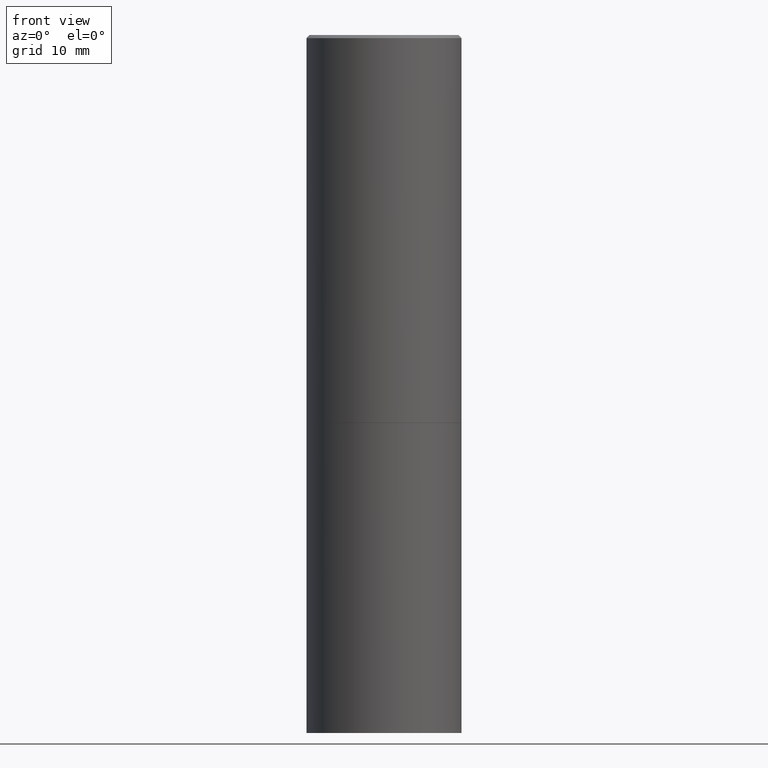
[diagram: clean part render]
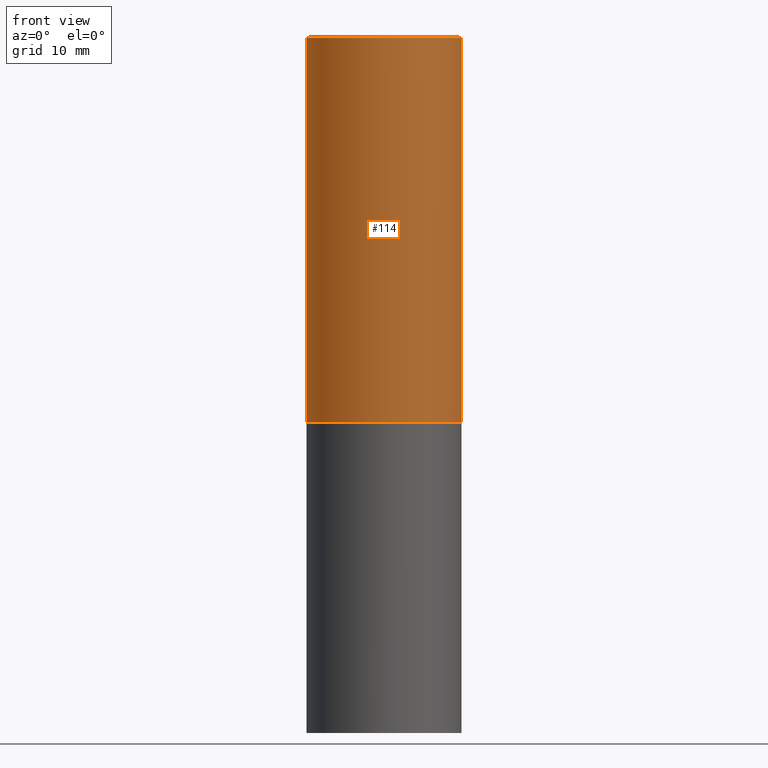
[diagram: same view with one face highlighted and labeled with its STEP entity id]
A machine part, front view. The second image highlights one B-rep face of the part: STEP entity #114.
In plain terms, the highlighted cylindrical surface (partial cylindrical patch) has radius 12.7 mm, axis along (-0, 0, 1).
Its self-contained STEP definition (entity closure, byte-faithful):
#19 = CARTESIAN_POINT ( 'NONE',  ( -0.5000000000000000000, -8.448070674724393209E-16, -2.499000000000000110 ) ) ;
#21 = DIRECTION ( 'NONE',  ( -2.445468806185136877E-29, 3.491481338843145188E-15, 1.000000000000000000 ) ) ;
#57 = CARTESIAN_POINT ( 'NONE',  ( 0.4999999999999997780, -3.491481338843131778E-15, 2.438088387897966775E-29 ) ) ;
#58 = DIRECTION ( 'NONE',  ( -2.445468806185136877E-29, 3.491481338843145188E-15, 1.000000000000000000 ) ) ;
#66 = CIRCLE ( 'NONE', #239, 0.4999999999999996114 ) ;
#77 = CARTESIAN_POINT ( 'NONE',  ( 0.5000000000000000000, -1.221669320461215371E-14, -2.499000000000000110 ) ) ;
#88 = EDGE_CURVE ( 'NONE', #126, #344, #66, .T. ) ;
#89 = VERTEX_POINT ( 'NONE', #77 ) ;
#114 = ADVANCED_FACE ( 'NONE', ( #138 ), #297, .T. ) ;
#126 = VERTEX_POINT ( 'NONE', #134 ) ;
#134 = CARTESIAN_POINT ( 'NONE',  ( -0.4999999999999996114, 3.421651712066267296E-15, -0.02000000000000009409 ) ) ;
#138 = FACE_OUTER_BOUND ( 'NONE', #173, .T. ) ;
#143 = CARTESIAN_POINT ( 'NONE',  ( 0.4999999999999996114, -3.500078625662626318E-15, -0.02000000000000009409 ) ) ;
#145 = LINE ( 'NONE', #357, #328 ) ;
#161 = CARTESIAN_POINT ( 'NONE',  ( 0.000000000000000000, 0.000000000000000000, 0.000000000000000000 ) ) ;
#163 = CIRCLE ( 'NONE', #334, 0.5000000000000000000 ) ;
#167 = EDGE_CURVE ( 'NONE', #287, #89, #163, .T. ) ;
#169 = VECTOR ( 'NONE', #58, 39.37007874015748143 ) ;
#173 = EDGE_LOOP ( 'NONE', ( #345, #282, #362, #312 ) ) ;
#188 = DIRECTION ( 'NONE',  ( -2.445468806185136597E-29, 3.491481338843145583E-15, 1.000000000000000000 ) ) ;
#206 = CARTESIAN_POINT ( 'NONE',  ( 6.111226546656657010E-29, -8.725211865769021935E-15, -2.499000000000000110 ) ) ;
#233 = DIRECTION ( 'NONE',  ( 1.000000000000000000, -6.982962677686265133E-15, 0.000000000000000000 ) ) ;
#239 = AXIS2_PLACEMENT_3D ( 'NONE', #250, #243, #355 ) ;
#243 = DIRECTION ( 'NONE',  ( -2.445468806185136597E-29, 3.491481338843145583E-15, 1.000000000000000000 ) ) ;
#250 = CARTESIAN_POINT ( 'NONE',  ( 4.890937612370296805E-31, -6.982962677686323656E-17, -0.02000000000000009409 ) ) ;
#282 = ORIENTED_EDGE ( 'NONE', *, *, #167, .T. ) ;
#287 = VERTEX_POINT ( 'NONE', #19 ) ;
#297 = CYLINDRICAL_SURFACE ( 'NONE', #299, 0.4999999999999997780 ) ;
#299 = AXIS2_PLACEMENT_3D ( 'NONE', #161, #188, #330 ) ;
#312 = ORIENTED_EDGE ( 'NONE', *, *, #88, .F. ) ;
#313 = DIRECTION ( 'NONE',  ( -2.445468806185136597E-29, 3.491481338843145583E-15, 1.000000000000000000 ) ) ;
#327 = EDGE_CURVE ( 'NONE', #287, #126, #145, .T. ) ;
#328 = VECTOR ( 'NONE', #21, 39.37007874015748143 ) ;
#330 = DIRECTION ( 'NONE',  ( 1.000000000000000000, -6.982962677686266711E-15, 4.876176775795935793E-29 ) ) ;
#332 = LINE ( 'NONE', #57, #169 ) ;
#334 = AXIS2_PLACEMENT_3D ( 'NONE', #206, #313, #233 ) ;
#344 = VERTEX_POINT ( 'NONE', #143 ) ;
#345 = ORIENTED_EDGE ( 'NONE', *, *, #327, .F. ) ;
#346 = EDGE_CURVE ( 'NONE', #89, #344, #332, .T. ) ;
#355 = DIRECTION ( 'NONE',  ( 1.000000000000000000, -6.982962677686266711E-15, 0.000000000000000000 ) ) ;
#357 = CARTESIAN_POINT ( 'NONE',  ( -0.4999999999999997780, 3.552713678800499352E-15, -2.459467545127452050E-29 ) ) ;
#362 = ORIENTED_EDGE ( 'NONE', *, *, #346, .T. ) ;